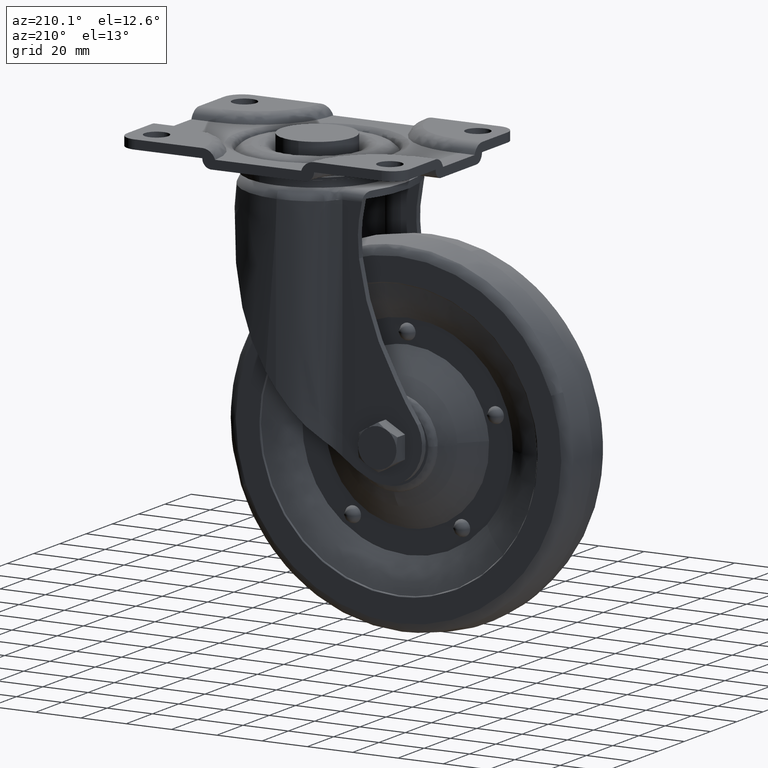
[diagram: clean part render]
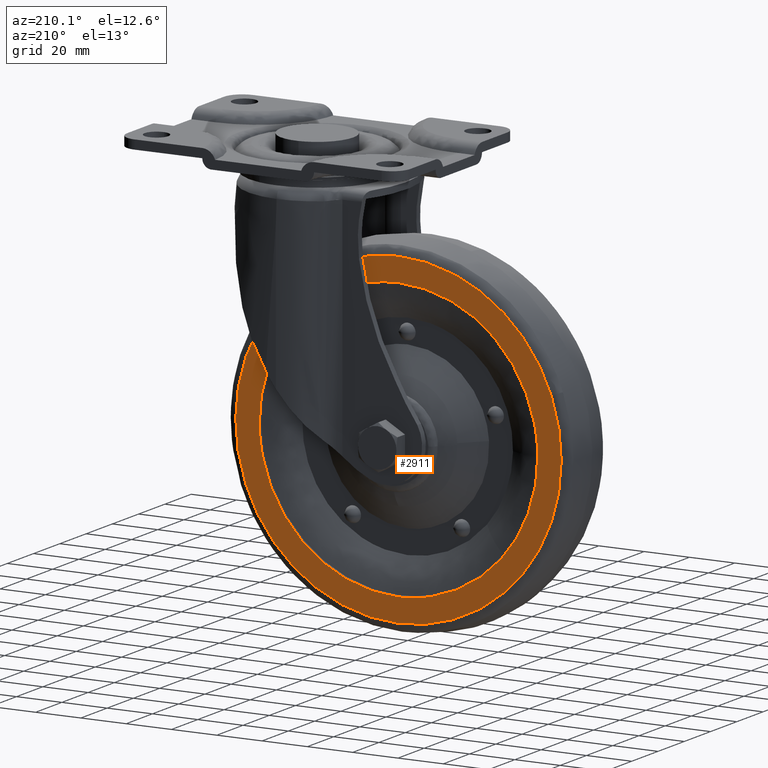
[diagram: same view with one face highlighted and labeled with its STEP entity id]
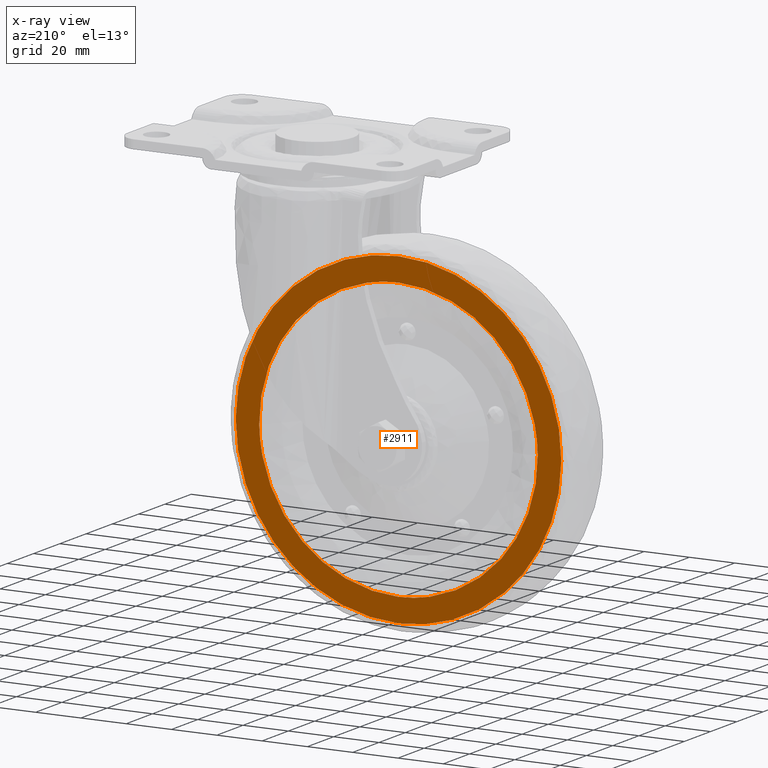
[diagram: x-ray of the same camera — body ghosted, the highlighted face saturated]
A machine part, auxiliary view. The second image highlights one B-rep face of the part: STEP entity #2911.
The next image is the same camera in x-ray: the body ghosted, the highlighted face saturated — about 0% of this face is hidden behind the body in this view.
In plain terms, the highlighted face is a freeform B-spline surface patch.
Its self-contained STEP definition (entity closure, byte-faithful):
#2710=CARTESIAN_POINT('',(17.495144199788200,14.0,-113.272811452859900));
#2711=VERTEX_POINT('',#2710);
#2725=CARTESIAN_POINT('',(-44.0,14.0,-174.0));
#2726=VERTEX_POINT('',#2725);
#2727=CARTESIAN_POINT('',(-44.0,14.0,-174.0));
#2728=CARTESIAN_POINT('',(16.731983679662374,14.000000000000002,-173.999999999882310));
#2729=CARTESIAN_POINT('',(17.495144199788196,13.999999999999996,-113.272811452859900));
#2737=(BOUNDED_CURVE()B_SPLINE_CURVE(2,(#2727,#2728,#2729),.UNSPECIFIED.,.F.,.U.)B_SPLINE_CURVE_WITH_KNOTS((3,3),(0.0,0.247784295920958),.UNSPECIFIED.)CURVE()GEOMETRIC_REPRESENTATION_ITEM()RATIONAL_B_SPLINE_CURVE((1.0,0.709702639985142,0.994854295642240))REPRESENTATION_ITEM(''));
#2738=EDGE_CURVE('',#2726,#2711,#2737,.T.);
#2740=CARTESIAN_POINT('',(-105.495144199788200,14.0,-111.727188547140100));
#2741=VERTEX_POINT('',#2740);
#2742=CARTESIAN_POINT('',(-105.495144199788230,14.000000000000005,-111.727188547140160));
#2743=CARTESIAN_POINT('',(-105.499999981315010,14.000000000000004,-112.113579018598940));
#2744=CARTESIAN_POINT('',(-105.499999981373900,14.0,-112.500000000234000));
#2745=CARTESIAN_POINT('',(-105.499999990745490,13.999999999999998,-174.000000000116300));
#2746=CARTESIAN_POINT('',(-44.0,14.0,-174.0));
#2754=(BOUNDED_CURVE()B_SPLINE_CURVE(2,(#2742,#2743,#2744,#2745,#2746),.UNSPECIFIED.,.F.,.U.)B_SPLINE_CURVE_WITH_KNOTS((3,2,3),(0.747784295920958,0.750000000000000,1.0),.UNSPECIFIED.)CURVE()GEOMETRIC_REPRESENTATION_ITEM()RATIONAL_B_SPLINE_CURVE((0.994854295642240,0.997404141201406,1.0,0.707106781186548,1.0))REPRESENTATION_ITEM(''));
#2755=EDGE_CURVE('',#2741,#2726,#2754,.T.);
#2798=CARTESIAN_POINT('',(-44.0,14.0,-51.000000000000007));
#2799=VERTEX_POINT('',#2798);
#2800=CARTESIAN_POINT('',(-44.0,14.0,-51.000000000000007));
#2801=CARTESIAN_POINT('',(-104.731983679662410,14.0,-51.000000000117751));
#2802=CARTESIAN_POINT('',(-105.495144199788230,14.000000000000005,-111.727188547140160));
#2810=(BOUNDED_CURVE()B_SPLINE_CURVE(2,(#2800,#2801,#2802),.UNSPECIFIED.,.F.,.U.)B_SPLINE_CURVE_WITH_KNOTS((3,3),(0.500000000000000,0.747784295920958),.UNSPECIFIED.)CURVE()GEOMETRIC_REPRESENTATION_ITEM()RATIONAL_B_SPLINE_CURVE((1.0,0.709702639985142,0.994854295642240))REPRESENTATION_ITEM(''));
#2811=EDGE_CURVE('',#2799,#2741,#2810,.T.);
#2813=CARTESIAN_POINT('',(17.495144199788196,13.999999999999996,-113.272811452859900));
#2814=CARTESIAN_POINT('',(17.499999981315050,14.000000000000005,-112.886420981401020));
#2815=CARTESIAN_POINT('',(17.499999981373929,14.0,-112.499999999765900));
#2816=CARTESIAN_POINT('',(17.499999990745483,14.000000000000002,-50.999999999883705));
#2817=CARTESIAN_POINT('',(-44.0,14.0,-51.000000000000007));
#2825=(BOUNDED_CURVE()B_SPLINE_CURVE(2,(#2813,#2814,#2815,#2816,#2817),.UNSPECIFIED.,.F.,.U.)B_SPLINE_CURVE_WITH_KNOTS((3,2,3),(0.247784295920958,0.250000000000000,0.500000000000000),.UNSPECIFIED.)CURVE()GEOMETRIC_REPRESENTATION_ITEM()RATIONAL_B_SPLINE_CURVE((0.994854295642240,0.997404141201405,1.0,0.707106781186548,1.0))REPRESENTATION_ITEM(''));
#2826=EDGE_CURVE('',#2711,#2799,#2825,.T.);
#2834=CARTESIAN_POINT('',(-122.980905380348500,14.0,-191.519897093825900));
#2835=CARTESIAN_POINT('',(-122.980905380348500,14.0,-33.480099052225967));
#2836=CARTESIAN_POINT('',(34.980909232240109,14.0,-191.519897093825900));
#2837=CARTESIAN_POINT('',(34.980909232240109,14.0,-33.480099052225981));
#2838=B_SPLINE_SURFACE_WITH_KNOTS('',1,1,((#2834,#2836),(#2835,#2837)),.UNSPECIFIED.,.F.,.F.,.U.,(2,2),(2,2),(0.0,158.039798041599910),(0.0,157.961814612588600),.UNSPECIFIED.);
#2839=CARTESIAN_POINT('',(-111.441270215077790,14.0,-87.739886874917715));
#2840=VERTEX_POINT('',#2839);
#2841=CARTESIAN_POINT('',(-44.0,14.0,-184.342801502242390));
#2842=VERTEX_POINT('',#2841);
#2843=CARTESIAN_POINT('',(-111.441270215077760,13.999999999999995,-87.739886874917715));
#2844=CARTESIAN_POINT('',(-115.842801517558390,14.000000000000004,-99.728719902807114));
#2845=CARTESIAN_POINT('',(-115.842801516107000,14.0,-112.499999994909800));
#2846=CARTESIAN_POINT('',(-115.842801507942350,13.999999999999998,-184.342801500149790));
#2847=CARTESIAN_POINT('',(-44.0,14.0,-184.342801502242390));
#2855=(BOUNDED_CURVE()B_SPLINE_CURVE(2,(#2843,#2844,#2845,#2846,#2847),.UNSPECIFIED.,.F.,.U.)B_SPLINE_CURVE_WITH_KNOTS((3,2,3),(0.691460350202081,0.750000000000000,1.0),.UNSPECIFIED.)CURVE()GEOMETRIC_REPRESENTATION_ITEM()RATIONAL_B_SPLINE_CURVE((0.894951884912775,0.931416534169901,1.0,0.707106781186548,1.0))REPRESENTATION_ITEM(''));
#2856=EDGE_CURVE('',#2840,#2842,#2855,.T.);
#2857=ORIENTED_EDGE('',*,*,#2856,.F.);
#2858=CARTESIAN_POINT('',(-44.0,14.0,-40.657198497757612));
#2859=VERTEX_POINT('',#2858);
#2860=CARTESIAN_POINT('',(-44.0,14.0,-40.657198497757612));
#2861=CARTESIAN_POINT('',(-94.155523854833177,13.999999999999998,-40.657198494760088));
#2862=CARTESIAN_POINT('',(-111.441270215077760,13.999999999999995,-87.739886874917715));
#2870=(BOUNDED_CURVE()B_SPLINE_CURVE(2,(#2860,#2861,#2862),.UNSPECIFIED.,.F.,.U.)B_SPLINE_CURVE_WITH_KNOTS((3,3),(0.500000000000000,0.691460350202081),.UNSPECIFIED.)CURVE()GEOMETRIC_REPRESENTATION_ITEM()RATIONAL_B_SPLINE_CURVE((1.0,0.775690247016646,0.894951884912775))REPRESENTATION_ITEM(''));
#2871=EDGE_CURVE('',#2859,#2840,#2870,.T.);
#2872=ORIENTED_EDGE('',*,*,#2871,.F.);
#2873=CARTESIAN_POINT('',(23.441270215077768,14.0,-137.260113125082310));
#2874=VERTEX_POINT('',#2873);
#2875=CARTESIAN_POINT('',(23.441270215077761,13.999999999999996,-137.260113125082230));
#2876=CARTESIAN_POINT('',(27.842801517558343,13.999999999999991,-125.271280097192870));
#2877=CARTESIAN_POINT('',(27.842801516106949,14.0,-112.500000005090200));
#2878=CARTESIAN_POINT('',(27.842801507942337,13.999999999999998,-40.657198499850267));
#2879=CARTESIAN_POINT('',(-44.0,14.0,-40.657198497757612));
#2887=(BOUNDED_CURVE()B_SPLINE_CURVE(2,(#2875,#2876,#2877,#2878,#2879),.UNSPECIFIED.,.F.,.U.)B_SPLINE_CURVE_WITH_KNOTS((3,2,3),(0.191460350202081,0.250000000000000,0.500000000000000),.UNSPECIFIED.)CURVE()GEOMETRIC_REPRESENTATION_ITEM()RATIONAL_B_SPLINE_CURVE((0.894951884912774,0.931416534169901,1.0,0.707106781186548,1.0))REPRESENTATION_ITEM(''));
#2888=EDGE_CURVE('',#2874,#2859,#2887,.T.);
#2889=ORIENTED_EDGE('',*,*,#2888,.F.);
#2890=CARTESIAN_POINT('',(-44.0,14.0,-184.342801502242390));
#2891=CARTESIAN_POINT('',(6.155523854833199,14.0,-184.342801505239980));
#2892=CARTESIAN_POINT('',(23.441270215077761,13.999999999999996,-137.260113125082230));
#2900=(BOUNDED_CURVE()B_SPLINE_CURVE(2,(#2890,#2891,#2892),.UNSPECIFIED.,.F.,.U.)B_SPLINE_CURVE_WITH_KNOTS((3,3),(0.0,0.191460350202081),.UNSPECIFIED.)CURVE()GEOMETRIC_REPRESENTATION_ITEM()RATIONAL_B_SPLINE_CURVE((1.0,0.775690247016646,0.894951884912774))REPRESENTATION_ITEM(''));
#2901=EDGE_CURVE('',#2842,#2874,#2900,.T.);
#2902=ORIENTED_EDGE('',*,*,#2901,.F.);
#2903=EDGE_LOOP('',(#2857,#2872,#2889,#2902));
#2904=FACE_OUTER_BOUND('',#2903,.T.);
#2905=ORIENTED_EDGE('',*,*,#2738,.T.);
#2906=ORIENTED_EDGE('',*,*,#2826,.T.);
#2907=ORIENTED_EDGE('',*,*,#2811,.T.);
#2908=ORIENTED_EDGE('',*,*,#2755,.T.);
#2909=EDGE_LOOP('',(#2905,#2906,#2907,#2908));
#2910=FACE_BOUND('',#2909,.T.);
#2911=ADVANCED_FACE('',(#2904,#2910),#2838,.T.);